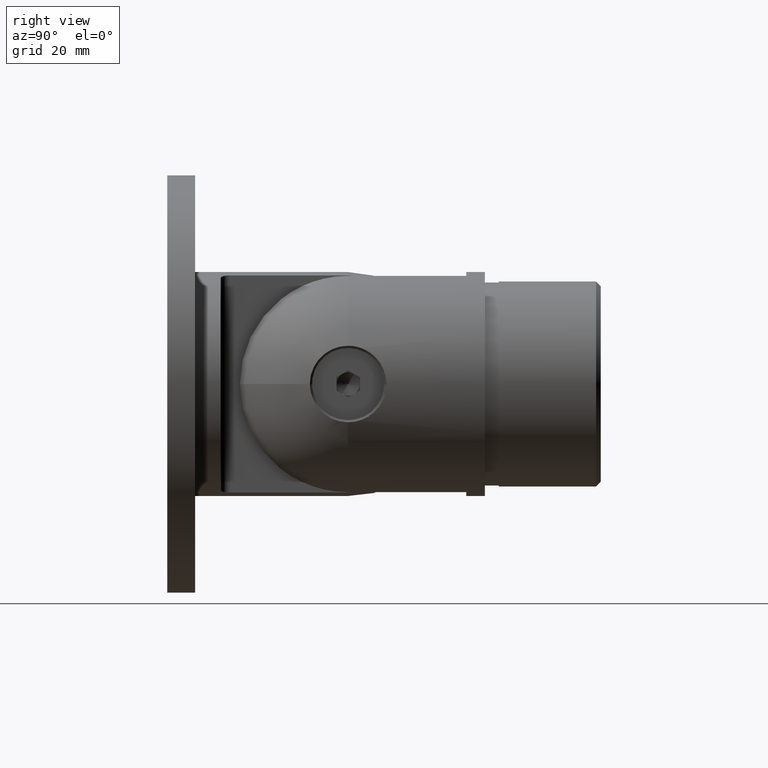
[diagram: clean part render]
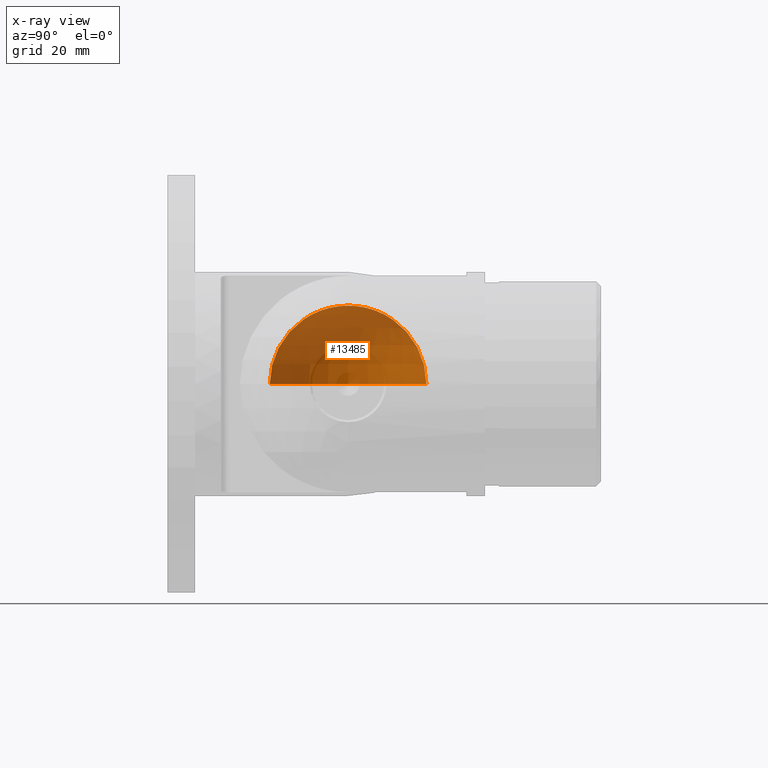
[diagram: x-ray — body ghosted, one internal face saturated and labeled with its STEP entity id]
A machine part, right view, then the same camera in x-ray: the body is ghosted and one INTERNAL B-rep face — a face not visible from any outside direction — is saturated and labeled: STEP entity #13485.
In plain terms, the highlighted spherical surface has radius 18 mm.
Its self-contained STEP definition (entity closure, byte-faithful):
#29 = AXIS2_PLACEMENT_3D ( 'NONE', #3538, #5206, #9178 ) ;
#465 = VERTEX_POINT ( 'NONE', #22524 ) ;
#2563 = CARTESIAN_POINT ( 'NONE',  ( -6.249999999999995559, 41.03009182439479474, 0.000000000000000000 ) ) ;
#3236 = AXIS2_PLACEMENT_3D ( 'NONE', #15981, #17898, #17973 ) ;
#3538 = CARTESIAN_POINT ( 'NONE',  ( 0.000000000000000000, 24.15000000000000213, 0.000000000000000000 ) ) ;
#3553 = AXIS2_PLACEMENT_3D ( 'NONE', #16219, #6137, #15881 ) ;
#4990 = ORIENTED_EDGE ( 'NONE', *, *, #8544, .F. ) ;
#5027 = VERTEX_POINT ( 'NONE', #2563 ) ;
#5055 = SPHERICAL_SURFACE ( 'NONE', #29, 18.00000000000000000 ) ;
#5206 = DIRECTION ( 'NONE',  ( -0.000000000000000000, -0.000000000000000000, -1.000000000000000000 ) ) ;
#6137 = DIRECTION ( 'NONE',  ( -0.000000000000000000, 0.000000000000000000, 1.000000000000000000 ) ) ;
#6716 = EDGE_LOOP ( 'NONE', ( #19395, #4990 ) ) ;
#7466 = FACE_OUTER_BOUND ( 'NONE', #6716, .T. ) ;
#8544 = EDGE_CURVE ( 'NONE', #465, #5027, #17887, .T. ) ;
#9178 = DIRECTION ( 'NONE',  ( -1.000000000000000000, 0.000000000000000000, 0.000000000000000000 ) ) ;
#13485 = ADVANCED_FACE ( 'NONE', ( #7466 ), #5055, .F. ) ;
#15881 = DIRECTION ( 'NONE',  ( 1.000000000000000000, 0.000000000000000000, 0.000000000000000000 ) ) ;
#15981 = CARTESIAN_POINT ( 'NONE',  ( -6.249999999999995559, 24.15000000000000213, 0.000000000000000000 ) ) ;
#16219 = CARTESIAN_POINT ( 'NONE',  ( 0.000000000000000000, 24.15000000000000213, 0.000000000000000000 ) ) ;
#17887 = CIRCLE ( 'NONE', #3236, 16.88009182439479616 ) ;
#17898 = DIRECTION ( 'NONE',  ( -1.000000000000000000, 0.000000000000000000, 0.000000000000000000 ) ) ;
#17973 = DIRECTION ( 'NONE',  ( 0.000000000000000000, 0.000000000000000000, 1.000000000000000000 ) ) ;
#19395 = ORIENTED_EDGE ( 'NONE', *, *, #22631, .F. ) ;
#22020 = CIRCLE ( 'NONE', #3553, 18.00000000000000000 ) ;
#22524 = CARTESIAN_POINT ( 'NONE',  ( -6.249999999999995559, 7.269908175605205969, 0.000000000000000000 ) ) ;
#22631 = EDGE_CURVE ( 'NONE', #5027, #465, #22020, .T. ) ;